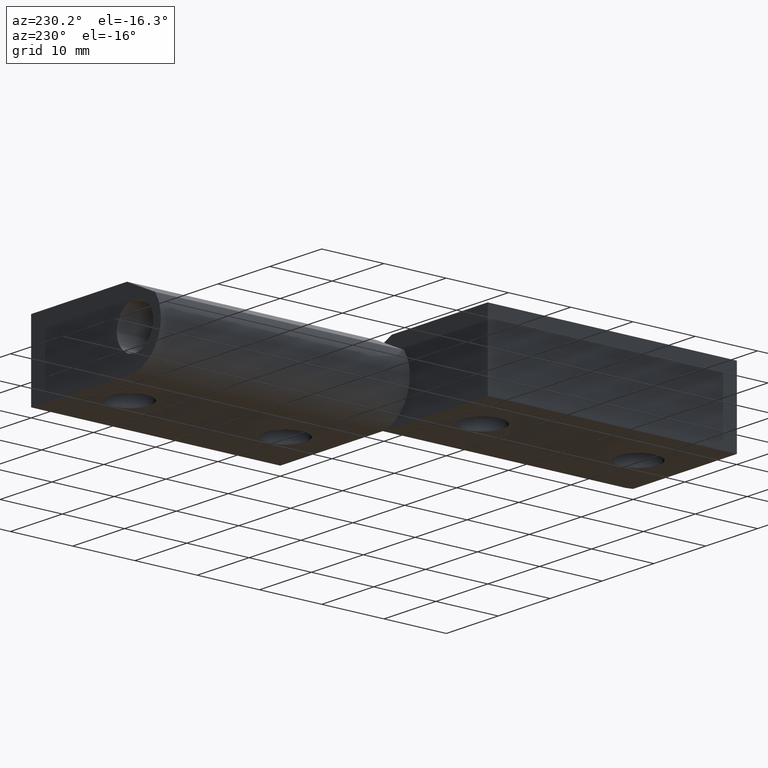
[diagram: clean part render]
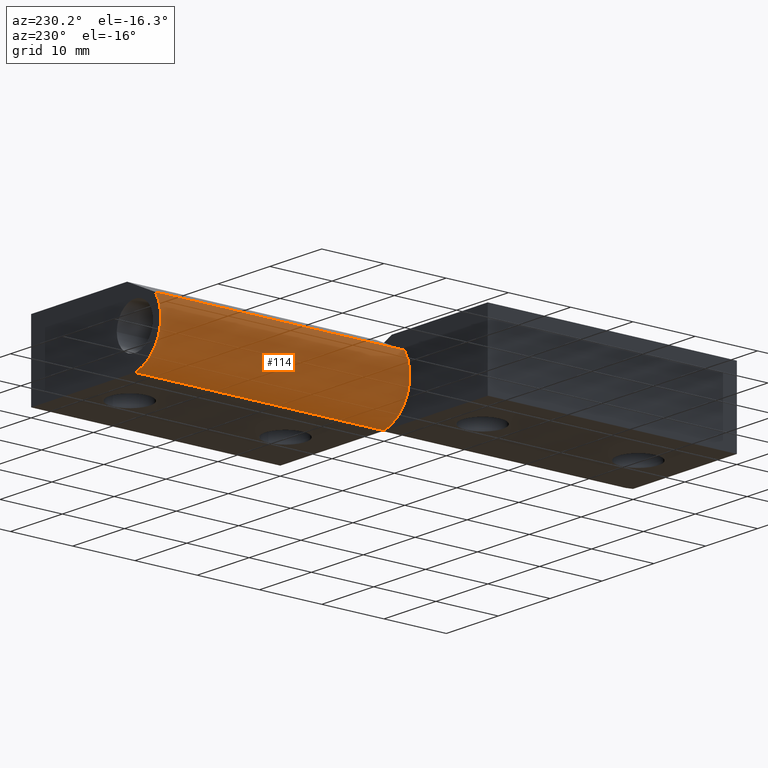
[diagram: same view with one face highlighted and labeled with its STEP entity id]
A machine part, auxiliary view. The second image highlights one B-rep face of the part: STEP entity #114.
In plain terms, the highlighted cylindrical surface (partial cylindrical patch) has radius 6.1 mm, axis along (0, 1, 0).
Its self-contained STEP definition (entity closure, byte-faithful):
#17=CARTESIAN_POINT('',(0.000002618212875,40.0,-5.999987999976381));
#18=VERTEX_POINT('',#17);
#25=CARTESIAN_POINT('',(0.000002618212875,80.0,-5.999987999976378));
#26=VERTEX_POINT('',#25);
#27=CARTESIAN_POINT('',(0.000002618212875,80.0,-5.999987999976378));
#28=DIRECTION('',(0.0,-1.0,0.0));
#29=VECTOR('',#28,40.0);
#30=LINE('',#27,#29);
#31=EDGE_CURVE('',#26,#18,#30,.T.);
#82=CARTESIAN_POINT('',(1.099998098277865,80.0,0.000000427091441));
#83=DIRECTION('',(0.0,1.0,6.123234E-017));
#84=DIRECTION('',(-0.180327488483690,6.022854E-017,-0.983606627111248));
#85=AXIS2_PLACEMENT_3D('',#82,#83,#84);
#86=CYLINDRICAL_SURFACE('',#85,6.099987801718248);
#87=ORIENTED_EDGE('',*,*,#31,.T.);
#88=CARTESIAN_POINT('',(-3.912713944059760,40.0,3.475999443448930));
#89=VERTEX_POINT('',#88);
#90=CARTESIAN_POINT('',(1.099998098277865,40.0,0.000000427091438));
#91=DIRECTION('',(0.0,1.0,6.123234E-017));
#92=DIRECTION('',(-0.180327488483690,6.022854E-017,-0.983606627111248));
#93=AXIS2_PLACEMENT_3D('',#90,#91,#92);
#94=CIRCLE('',#93,6.099987801718248);
#95=EDGE_CURVE('',#18,#89,#94,.T.);
#96=ORIENTED_EDGE('',*,*,#95,.T.);
#97=CARTESIAN_POINT('',(-3.912713944059760,80.0,3.475999443448932));
#98=VERTEX_POINT('',#97);
#99=CARTESIAN_POINT('',(-3.912713944059760,80.0,3.475999443448932));
#100=DIRECTION('',(0.0,-1.0,0.0));
#101=VECTOR('',#100,40.0);
#102=LINE('',#99,#101);
#103=EDGE_CURVE('',#98,#89,#102,.T.);
#104=ORIENTED_EDGE('',*,*,#103,.F.);
#105=CARTESIAN_POINT('',(1.099998098277865,80.0,0.000000427091441));
#106=DIRECTION('',(0.0,1.0,6.123234E-017));
#107=DIRECTION('',(-0.180327488483690,6.022854E-017,-0.983606627111248));
#108=AXIS2_PLACEMENT_3D('',#105,#106,#107);
#109=CIRCLE('',#108,6.099987801718248);
#110=EDGE_CURVE('',#26,#98,#109,.T.);
#111=ORIENTED_EDGE('',*,*,#110,.F.);
#112=EDGE_LOOP('',(#87,#96,#104,#111));
#113=FACE_OUTER_BOUND('',#112,.T.);
#114=ADVANCED_FACE('',(#113),#86,.T.);